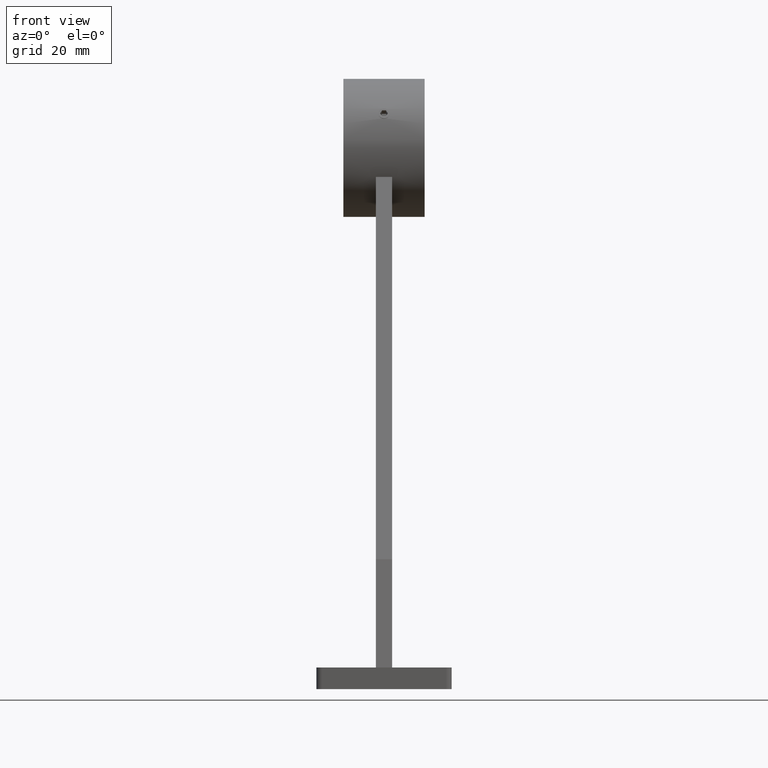
[diagram: clean part render]
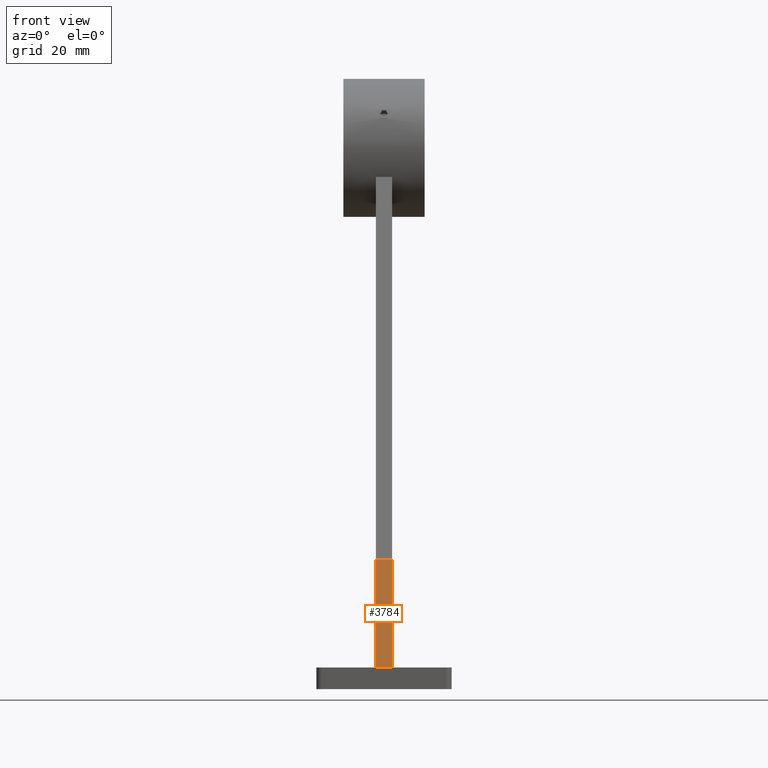
[diagram: same view with one face highlighted and labeled with its STEP entity id]
A machine part, front view. The second image highlights one B-rep face of the part: STEP entity #3784.
In plain terms, the highlighted planar face has unit normal (0, -0.9775, 0.211).
Its self-contained STEP definition (entity closure, byte-faithful):
#112 = CARTESIAN_POINT ( 'NONE',  ( 3.000000000000000000, -12.16012668210152015, 2.624241090030875245 ) ) ;
#153 = VECTOR ( 'NONE', #5396, 1000.000000000000000 ) ;
#251 = DIRECTION ( 'NONE',  ( 0.000000000000000000, 0.2109506823000734665, 0.9774967056911922914 ) ) ;
#333 = PLANE ( 'NONE',  #1530 ) ;
#1525 = VERTEX_POINT ( 'NONE', #14377 ) ;
#1530 = AXIS2_PLACEMENT_3D ( 'NONE', #7399, #9679, #2770 ) ;
#1934 = FACE_OUTER_BOUND ( 'NONE', #4364, .T. ) ;
#1942 = EDGE_CURVE ( 'NONE', #4759, #9626, #11122, .T. ) ;
#2770 = DIRECTION ( 'NONE',  ( 0.000000000000000000, -0.2109506823000735221, -0.9774967056911922914 ) ) ;
#3707 = ORIENTED_EDGE ( 'NONE', *, *, #1942, .T. ) ;
#3784 = ADVANCED_FACE ( 'NONE', ( #1934 ), #333, .T. ) ;
#4364 = EDGE_LOOP ( 'NONE', ( #11833, #7772, #13819, #3707 ) ) ;
#4759 = VERTEX_POINT ( 'NONE', #10619 ) ;
#5229 = VERTEX_POINT ( 'NONE', #10388 ) ;
#5396 = DIRECTION ( 'NONE',  ( 0.000000000000000000, 0.2109506823000734665, 0.9774967056911922914 ) ) ;
#6235 = LINE ( 'NONE', #6755, #153 ) ;
#6712 = LINE ( 'NONE', #112, #10839 ) ;
#6755 = CARTESIAN_POINT ( 'NONE',  ( -3.000000000000000000, -12.16012668210152015, 2.624241090030875245 ) ) ;
#7399 = CARTESIAN_POINT ( 'NONE',  ( 3.000000000000000000, -12.16012668210152015, 2.624241090030875245 ) ) ;
#7772 = ORIENTED_EDGE ( 'NONE', *, *, #12294, .F. ) ;
#9033 = EDGE_CURVE ( 'NONE', #1525, #9626, #6235, .T. ) ;
#9215 = CARTESIAN_POINT ( 'NONE',  ( 3.000000000000000000, -11.00000000000000355, 8.000000000000000000 ) ) ;
#9626 = VERTEX_POINT ( 'NONE', #10804 ) ;
#9679 = DIRECTION ( 'NONE',  ( 0.000000000000000000, -0.9774967056911922914, 0.2109506823000735221 ) ) ;
#10388 = CARTESIAN_POINT ( 'NONE',  ( 3.000000000000000000, -11.00000000000000355, 8.000000000000000000 ) ) ;
#10619 = CARTESIAN_POINT ( 'NONE',  ( 3.000000000000000000, -2.367717923881523578, 48.00000000000000711 ) ) ;
#10804 = CARTESIAN_POINT ( 'NONE',  ( -3.000000000000000000, -2.367717923881523578, 48.00000000000000711 ) ) ;
#10839 = VECTOR ( 'NONE', #251, 1000.000000000000000 ) ;
#11122 = LINE ( 'NONE', #13638, #13074 ) ;
#11434 = DIRECTION ( 'NONE',  ( -1.000000000000000000, -0.000000000000000000, -0.000000000000000000 ) ) ;
#11492 = DIRECTION ( 'NONE',  ( -1.000000000000000000, -0.000000000000000000, -0.000000000000000000 ) ) ;
#11833 = ORIENTED_EDGE ( 'NONE', *, *, #9033, .F. ) ;
#12294 = EDGE_CURVE ( 'NONE', #5229, #1525, #14607, .T. ) ;
#13074 = VECTOR ( 'NONE', #11434, 1000.000000000000000 ) ;
#13547 = VECTOR ( 'NONE', #11492, 1000.000000000000000 ) ;
#13638 = CARTESIAN_POINT ( 'NONE',  ( 3.000000000000000000, -2.367717923881523578, 48.00000000000000711 ) ) ;
#13819 = ORIENTED_EDGE ( 'NONE', *, *, #14692, .T. ) ;
#14377 = CARTESIAN_POINT ( 'NONE',  ( -3.000000000000000000, -11.00000000000000355, 8.000000000000000000 ) ) ;
#14607 = LINE ( 'NONE', #9215, #13547 ) ;
#14692 = EDGE_CURVE ( 'NONE', #5229, #4759, #6712, .T. ) ;